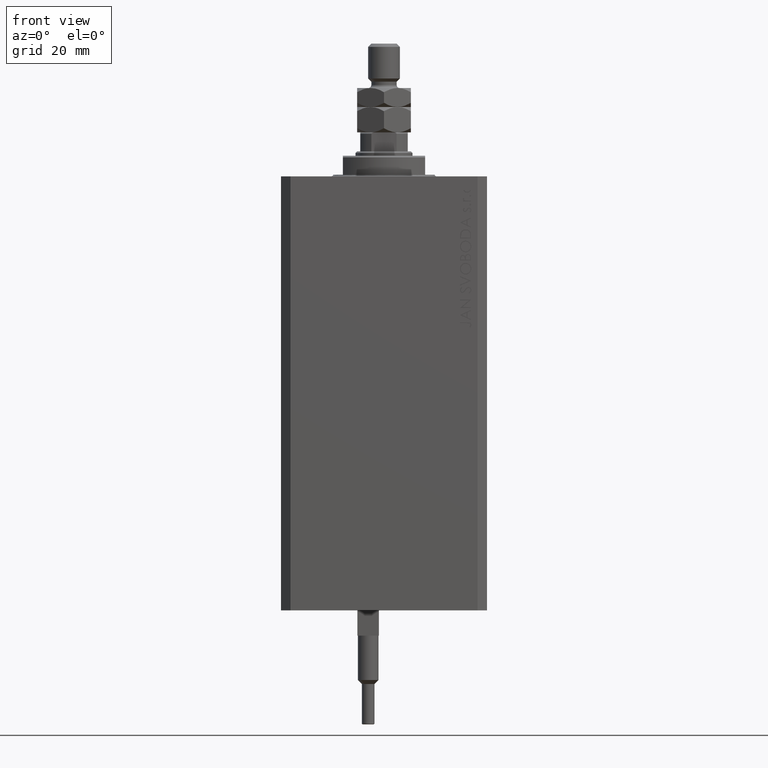
[diagram: clean part render]
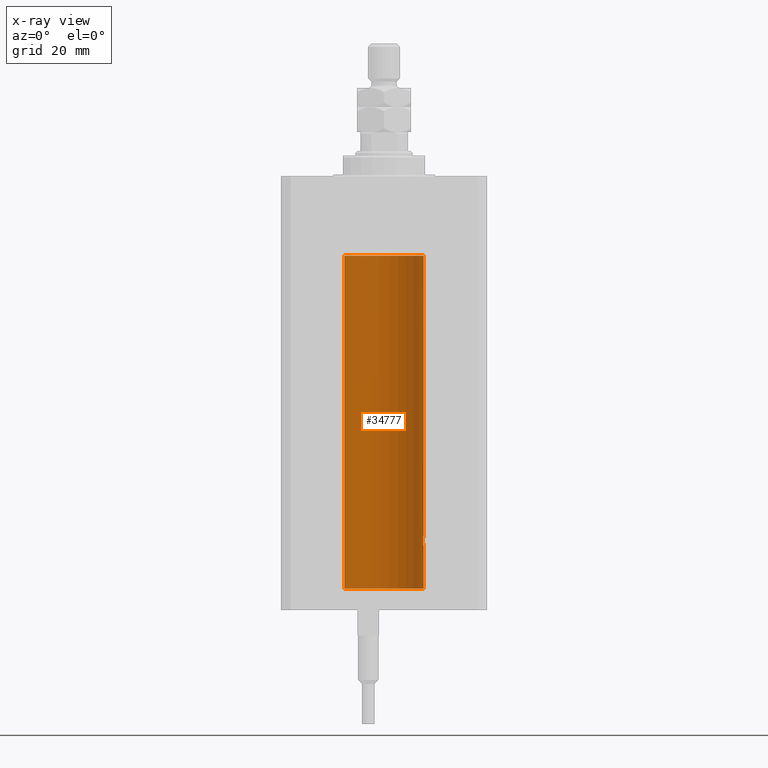
[diagram: x-ray — body ghosted, one internal face saturated and labeled with its STEP entity id]
A machine part, front view, then the same camera in x-ray: the body is ghosted and one INTERNAL B-rep face — a face not visible from any outside direction — is saturated and labeled: STEP entity #34777.
In plain terms, the highlighted cylindrical surface (partial cylindrical patch) has radius 12.5 mm, axis along (0, 0, 1).
Its self-contained STEP definition (entity closure, byte-faithful):
#666 = CARTESIAN_POINT ( 'NONE',  ( 12.50000000000000000, 2.320363022323678888E-15, -117.0000000000000142 ) ) ;
#743 = ORIENTED_EDGE ( 'NONE', *, *, #20278, .T. ) ;
#1397 = CARTESIAN_POINT ( 'NONE',  ( 12.34779119491631683, 1.947363444907009633, -115.5250277516825861 ) ) ;
#1465 = VERTEX_POINT ( 'NONE', #9106 ) ;
#1695 = CYLINDRICAL_SURFACE ( 'NONE', #28694, 12.50000000000000000 ) ;
#1720 = CARTESIAN_POINT ( 'NONE',  ( 12.37021546997940291, 1.797317011867403114, -114.1129511974108510 ) ) ;
#2643 = LINE ( 'NONE', #20498, #13655 ) ;
#4421 = CARTESIAN_POINT ( 'NONE',  ( 12.39869754437268590, 1.598954131913722820, -116.2293215281301286 ) ) ;
#4902 = CARTESIAN_POINT ( 'NONE',  ( 12.50000000000000178, 0.1324055009716466613, -117.0000000000000426 ) ) ;
#5148 = CARTESIAN_POINT ( 'NONE',  ( 12.43016561391612917, 1.322713721413880661, -116.5057887783670196 ) ) ;
#5550 = ORIENTED_EDGE ( 'NONE', *, *, #29551, .T. ) ;
#6715 = CIRCLE ( 'NONE', #45927, 12.50000000000000000 ) ;
#7411 = CARTESIAN_POINT ( 'NONE',  ( 0.000000000000000000, 0.000000000000000000, -25.10000000000000142 ) ) ;
#7571 = VERTEX_POINT ( 'NONE', #8321 ) ;
#8321 = CARTESIAN_POINT ( 'NONE',  ( 12.50000000000000000, 0.000000000000000000, -25.10000000000000142 ) ) ;
#9106 = CARTESIAN_POINT ( 'NONE',  ( 12.33896267925302759, 2.000000000000247802, -115.0000000000000142 ) ) ;
#9389 = CARTESIAN_POINT ( 'NONE',  ( 12.46019522898365217, 1.002712894177336223, -116.7354089602759899 ) ) ;
#9444 = ORIENTED_EDGE ( 'NONE', *, *, #49610, .T. ) ;
#9671 = CARTESIAN_POINT ( 'NONE',  ( 12.50000000000000000, 0.000000000000000000, -130.0999999999999943 ) ) ;
#9694 = DIRECTION ( 'NONE',  ( -0.000000000000000000, -0.000000000000000000, 1.000000000000000000 ) ) ;
#10937 = EDGE_CURVE ( 'NONE', #23188, #20134, #2643, .T. ) ;
#11681 = B_SPLINE_CURVE_WITH_KNOTS ( 'NONE', 3,
 ( #35544, #21008, #40303, #36292, #20759, #1720, #17248, #16997, #35786, #29015, #28267, #32263, #32511, #47823, #16507, #39305, #47577, #28766 ),
 .UNSPECIFIED., .F., .F.,
 ( 4, 2, 2, 2, 2, 2, 2, 2, 4 ),
 ( 0.003132244164174466730, 0.003523586189974241625, 0.003914928215774016521, 0.004306270241573791416, 0.004697612267373566311, 0.005088954293173341206, 0.005480296318973116101, 0.005871638344772890997, 0.006262980370572665892 ),
 .UNSPECIFIED. ) ;
#12014 = EDGE_CURVE ( 'NONE', #29123, #15463, #13927, .T. ) ;
#12174 = CARTESIAN_POINT ( 'NONE',  ( 12.33896267925302759, 2.000000000000248246, -115.2614317422079040 ) ) ;
#13375 = DIRECTION ( 'NONE',  ( 0.000000000000000000, 0.000000000000000000, 1.000000000000000000 ) ) ;
#13655 = VECTOR ( 'NONE', #41228, 1000.000000000000000 ) ;
#13927 = LINE ( 'NONE', #44500, #16075 ) ;
#15463 = VERTEX_POINT ( 'NONE', #27220 ) ;
#16075 = VECTOR ( 'NONE', #17682, 1000.000000000000000 ) ;
#16076 = ORIENTED_EDGE ( 'NONE', *, *, #45762, .F. ) ;
#16507 = CARTESIAN_POINT ( 'NONE',  ( 12.48983962833819028, 0.5199974825204898288, -113.0643516080801874 ) ) ;
#16922 = CARTESIAN_POINT ( 'NONE',  ( 12.37760587642916477, 1.747868572747719229, -116.0063965316900152 ) ) ;
#16997 = CARTESIAN_POINT ( 'NONE',  ( 12.39867611624532806, 1.590019252152828910, -113.7798449592961276 ) ) ;
#17248 = CARTESIAN_POINT ( 'NONE',  ( 12.37925647381943506, 1.734744884174218571, -113.9962073259865321 ) ) ;
#17629 = CARTESIAN_POINT ( 'NONE',  ( 12.50000000000000000, 0.000000000000000000, -130.0999999999999943 ) ) ;
#17682 = DIRECTION ( 'NONE',  ( -0.000000000000000000, -0.000000000000000000, 1.000000000000000000 ) ) ;
#17983 = DIRECTION ( 'NONE',  ( 1.000000000000000000, 0.000000000000000000, 0.000000000000000000 ) ) ;
#20134 = VERTEX_POINT ( 'NONE', #31713 ) ;
#20241 = FACE_OUTER_BOUND ( 'NONE', #31288, .T. ) ;
#20278 = EDGE_CURVE ( 'NONE', #39324, #7571, #44014, .T. ) ;
#20345 = VECTOR ( 'NONE', #31966, 1000.000000000000000 ) ;
#20498 = CARTESIAN_POINT ( 'NONE',  ( -12.50000000000000000, 1.530808498934191521E-15, -130.0999999999999943 ) ) ;
#20759 = CARTESIAN_POINT ( 'NONE',  ( 12.35520276972935427, 1.897773362058238877, -114.3552827863433947 ) ) ;
#21008 = CARTESIAN_POINT ( 'NONE',  ( 12.33896267925302581, 2.000000000000247358, -114.8693470594992334 ) ) ;
#23188 = VERTEX_POINT ( 'NONE', #39219 ) ;
#23347 = ORIENTED_EDGE ( 'NONE', *, *, #12014, .T. ) ;
#27220 = CARTESIAN_POINT ( 'NONE',  ( 12.50000000000000000, 2.320363022323678888E-15, -117.0000000000000142 ) ) ;
#28267 = CARTESIAN_POINT ( 'NONE',  ( 12.44079117518645639, 1.220047488436368122, -113.4098967633508437 ) ) ;
#28694 = AXIS2_PLACEMENT_3D ( 'NONE', #44549, #9694, #17983 ) ;
#28766 = CARTESIAN_POINT ( 'NONE',  ( 12.50000000000000000, -7.266276684081261841E-23, -113.0000000000000142 ) ) ;
#29015 = CARTESIAN_POINT ( 'NONE',  ( 12.43037348241797524, 1.320834183883837554, -113.4924383770429728 ) ) ;
#29123 = VERTEX_POINT ( 'NONE', #17629 ) ;
#29551 = EDGE_CURVE ( 'NONE', #1465, #39324, #11681, .T. ) ;
#30215 = DIRECTION ( 'NONE',  ( 0.000000000000000000, 0.000000000000000000, 1.000000000000000000 ) ) ;
#31019 = CARTESIAN_POINT ( 'NONE',  ( 12.50000000000000000, -7.266276684081261841E-23, -113.0000000000000142 ) ) ;
#31208 = CARTESIAN_POINT ( 'NONE',  ( 12.48989642018887736, 0.5185418732824252919, -116.9360129218760846 ) ) ;
#31288 = EDGE_LOOP ( 'NONE', ( #46835, #16076, #23347, #46823, #5550, #743, #9444 ) ) ;
#31713 = CARTESIAN_POINT ( 'NONE',  ( -12.50000000000000000, 1.530808498934191521E-15, -25.10000000000000142 ) ) ;
#31966 = DIRECTION ( 'NONE',  ( -0.000000000000000000, -0.000000000000000000, 1.000000000000000000 ) ) ;
#32263 = CARTESIAN_POINT ( 'NONE',  ( 12.46011632531798874, 1.003644408234883434, -113.2651679968767127 ) ) ;
#32511 = CARTESIAN_POINT ( 'NONE',  ( 12.46910683544638232, 0.8866026273585037032, -113.2024786368969700 ) ) ;
#34777 = ADVANCED_FACE ( 'NONE', ( #20241 ), #1695, .F. ) ;
#34973 = CARTESIAN_POINT ( 'NONE',  ( 12.44079900692650931, 1.220007525301739282, -116.5901757908366534 ) ) ;
#35544 = CARTESIAN_POINT ( 'NONE',  ( 12.33896267925302759, 2.000000000000247802, -115.0000000000000142 ) ) ;
#35786 = CARTESIAN_POINT ( 'NONE',  ( 12.40916530024876430, 1.507117913375715990, -113.6786595504900674 ) ) ;
#36292 = CARTESIAN_POINT ( 'NONE',  ( 12.34924836377099844, 1.935649219704934865, -114.4800206212716631 ) ) ;
#37101 = AXIS2_PLACEMENT_3D ( 'NONE', #44213, #13375, #47721 ) ;
#37162 = EDGE_CURVE ( 'NONE', #15463, #1465, #45227, .T. ) ;
#39219 = CARTESIAN_POINT ( 'NONE',  ( -12.50000000000000000, 1.530808498934191521E-15, -130.0999999999999943 ) ) ;
#39305 = CARTESIAN_POINT ( 'NONE',  ( 12.49788668346399945, 0.2632864803365707607, -113.0130897583833587 ) ) ;
#39324 = VERTEX_POINT ( 'NONE', #31019 ) ;
#40303 = CARTESIAN_POINT ( 'NONE',  ( 12.34110728646152388, 1.986893050944454453, -114.7366134776498541 ) ) ;
#41228 = DIRECTION ( 'NONE',  ( -0.000000000000000000, -0.000000000000000000, 1.000000000000000000 ) ) ;
#42761 = CARTESIAN_POINT ( 'NONE',  ( 12.49789833780794446, 0.2625555164371021766, -116.9869817082214922 ) ) ;
#43250 = CARTESIAN_POINT ( 'NONE',  ( 12.46901623405144122, 0.8878913781257877780, -116.7968965171755258 ) ) ;
#44014 = LINE ( 'NONE', #9671, #20345 ) ;
#44213 = CARTESIAN_POINT ( 'NONE',  ( 0.000000000000000000, 0.000000000000000000, -130.0999999999999943 ) ) ;
#44500 = CARTESIAN_POINT ( 'NONE',  ( 12.50000000000000000, 0.000000000000000000, -130.0999999999999943 ) ) ;
#44549 = CARTESIAN_POINT ( 'NONE',  ( 0.000000000000000000, 0.000000000000000000, -130.0999999999999943 ) ) ;
#45227 = B_SPLINE_CURVE_WITH_KNOTS ( 'NONE', 3,
 ( #666, #4902, #42761, #31208, #47255, #43250, #9389, #34973, #5148, #4421, #16922, #1397, #12174, #47504 ),
 .UNSPECIFIED., .F., .F.,
 ( 4, 2, 2, 2, 2, 2, 4 ),
 ( 2.254408494944823136E-18, 0.0003915305205218102386, 0.0007830610410436180920, 0.001174591561565426108, 0.001566122082087234016, 0.002349183123130850048, 0.003132244164174466730 ),
 .UNSPECIFIED. ) ;
#45762 = EDGE_CURVE ( 'NONE', #29123, #23188, #47492, .T. ) ;
#45927 = AXIS2_PLACEMENT_3D ( 'NONE', #7411, #30215, #48542 ) ;
#46823 = ORIENTED_EDGE ( 'NONE', *, *, #37162, .T. ) ;
#46835 = ORIENTED_EDGE ( 'NONE', *, *, #10937, .F. ) ;
#47255 = CARTESIAN_POINT ( 'NONE',  ( 12.48390005916863110, 0.6457215011736527899, -116.8974277155426904 ) ) ;
#47492 = CIRCLE ( 'NONE', #37101, 12.50000000000000000 ) ;
#47504 = CARTESIAN_POINT ( 'NONE',  ( 12.33896267925302759, 2.000000000000247802, -115.0000000000000142 ) ) ;
#47577 = CARTESIAN_POINT ( 'NONE',  ( 12.49999999999999822, 0.1306079576516667173, -113.0000000000000284 ) ) ;
#47721 = DIRECTION ( 'NONE',  ( 1.000000000000000000, 0.000000000000000000, 0.000000000000000000 ) ) ;
#47823 = CARTESIAN_POINT ( 'NONE',  ( 12.48395395845270528, 0.6446573166014707423, -113.1022212421351583 ) ) ;
#48542 = DIRECTION ( 'NONE',  ( 1.000000000000000000, 0.000000000000000000, 0.000000000000000000 ) ) ;
#49610 = EDGE_CURVE ( 'NONE', #7571, #20134, #6715, .T. ) ;